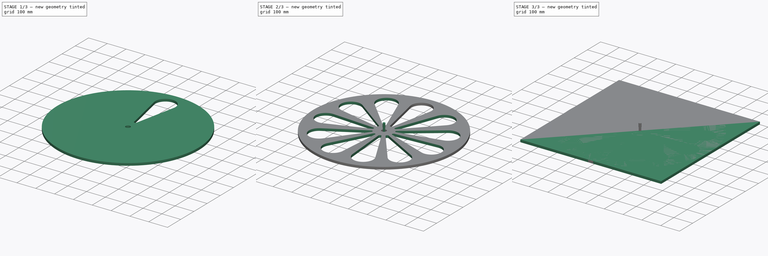
[diagram: build sequence overview — one tinted view per stage of 3, left to right]
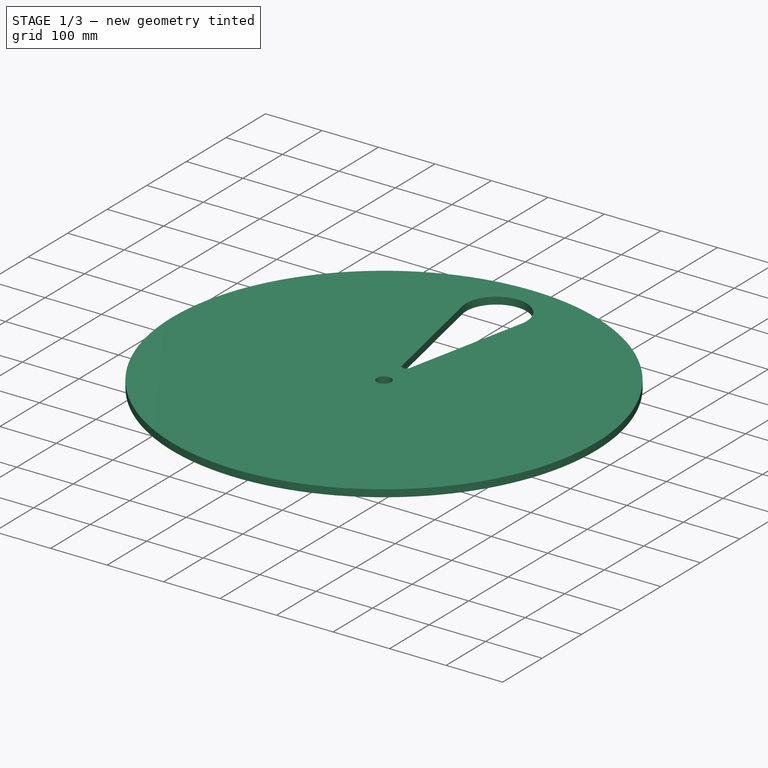
[diagram: stage 1 of 3 — iso view after this stage's code; geometry added in this stage tinted green]
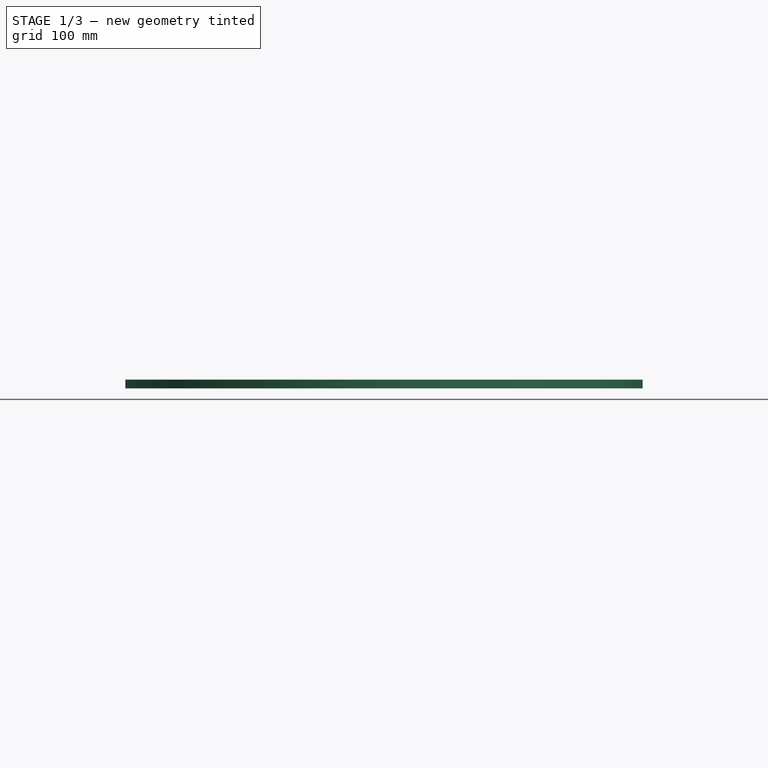
[diagram: stage 1 of 3 — front view after this stage's code; geometry added in this stage tinted green]
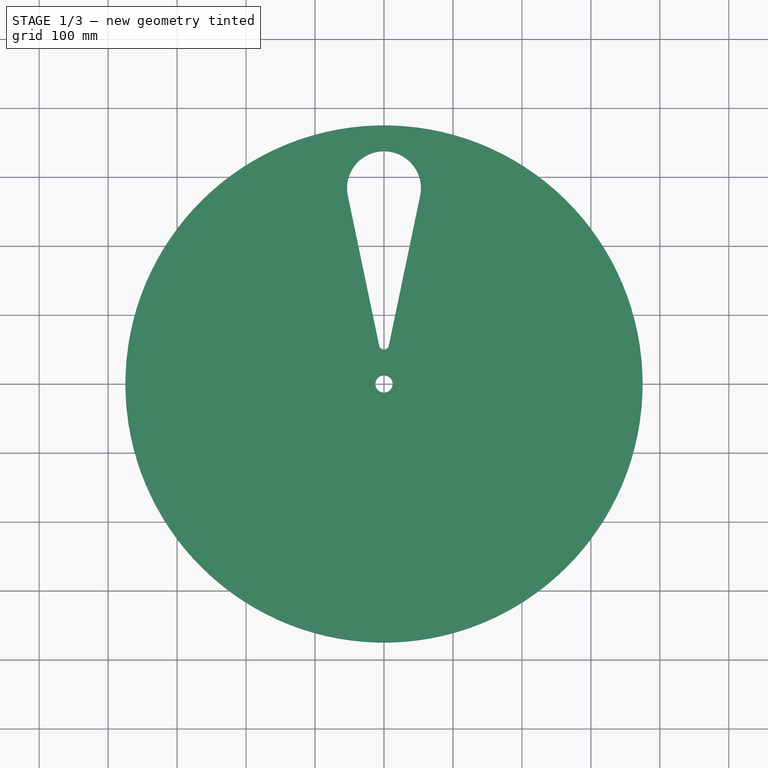
[diagram: stage 1 of 3 — top view after this stage's code; geometry added in this stage tinted green]
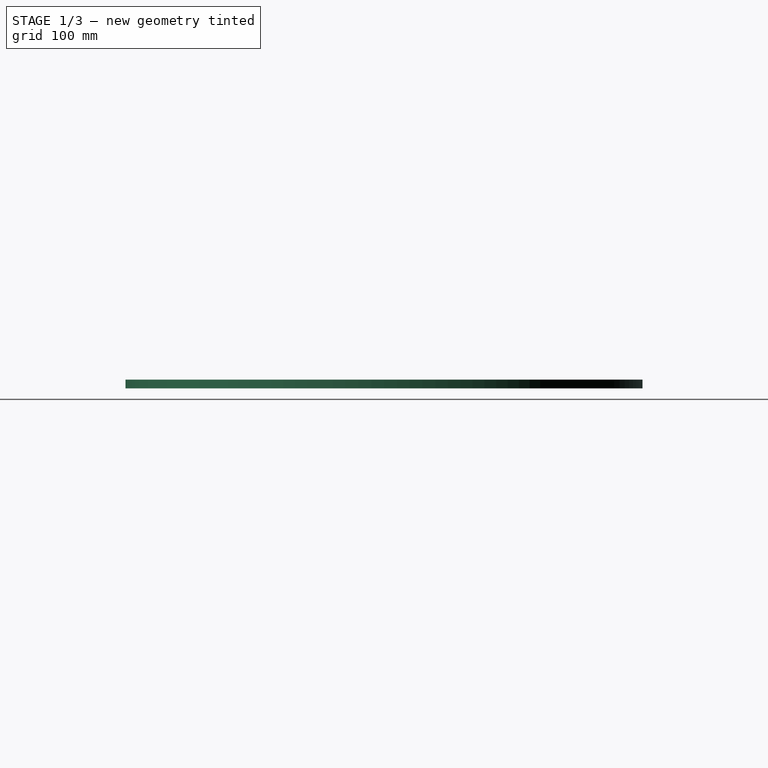
[diagram: stage 1 of 3 — right view after this stage's code; geometry added in this stage tinted green]
FCSTD DOCUMENT  (FreeCAD 0.20R29410 (Git))
Label: SpokedWheel
License: All rights reserved
LicenseURL: http://en.wikipedia.org/wiki/All_rights_reserved
objects: Path::FeaturePython×7, Part::FeaturePython×3, App::DocumentObjectGroup×3, Sketcher::SketchObject×2, Spreadsheet::Sheet×1, PartDesign::Pad×1, PartDesign::Pocket×1, App::FeaturePython×1, PartDesign::PolarPattern×1, PartDesign::Body×1
note: 14 computed .brp shape members not serialized (recipe doc carries the construction recipe); baked Part::Feature solids carry a one-line shape summary decoded from their .brp

FEATURE [Spreadsheet::Sheet] Spreadsheet  label="SS"
  cells = A1=Settings; H1=Calculated; A2=Wheel Diameter; B2(WheelDiameter)=750; H2=Outer Spoke Diameter; I2(SpokeMajor)==pi * WheelDiameter * 0.5 / NumSpokes; A3=Axle Diameter; B3(AxleDiam)=25; H3=Inner Spoke Diameter; I3(SpokeMinor)==HubCircle / NumSpokes / 2; A4=Num Spokes; B4(NumSpokes)=11; H4=Spoke Length; I4(SpokeLen)==WheelDiameter / 2 * 0.9 - HubDia / 2 - SpokeMajor / 2 - SpokeMinor / 2; A5=Hub Diameter; B5(HubDia)=100; H5=InnerCircle; I5==pi * HubDia; A6=Material Thickness; B6(Thickness)=12.7; H6=Hub Circle; I6(HubCircle)==pi * HubDia
FEATURE [Sketcher::SketchObject] Sketch
  FullyConstrained = true
  MapMode = 5
  Support = -> [XY_Plane]
  expr: Constraints[1] = <<SS>>.WheelDiameter
  expr: Constraints[3] = <<SS>>.AxleDiam
  sketch-geometry (2):
    g0: Circle CenterX=0 CenterY=0 CenterZ=0 NormalX=0 NormalY=0 NormalZ=1 AngleXU=0 Radius=375
    g1: Circle CenterX=0 CenterY=0 CenterZ=0 NormalX=0 NormalY=0 NormalZ=1 AngleXU=0 Radius=12.5
  constraints (4):
    c: Coincident(g0,g-1)
    c: Diameter(g0) = 750
    c: Coincident(g1,g0)
    c: Diameter(g1) = 25
FEATURE [PartDesign::Pad] Pad
  Direction = (0,0,1)
  Length = 12.7
  Length2 = 10
  Profile = -> Sketch
  ReferenceAxis = -> Sketch [N_Axis]
  Type = 0
  expr: Length = <<SS>>.Thickness
FEATURE [Sketcher::SketchObject] Sketch001
  FullyConstrained = true
  MapMode = 5
  Placement = pos=(0,0,12.7) rot=(0,0,1;0rad)
  Support = -> [Pad]
  expr: Constraints[11] = <<SS>>.SpokeMinor
  expr: Constraints[4] = <<SS>>.SpokeMajor
  expr: Constraints[5] = (<<SS>>.HubDia + <<SS>>.SpokeMinor) / 2
  expr: Constraints[9] = <<SS>>.SpokeLen
  sketch-geometry (4):
    g0: ArcOfCircle CenterX=0 CenterY=283.95 CenterZ=0 NormalX=0 NormalY=0 NormalZ=1 AngleXU=0 Radius=53.5499 StartAngle=6.07711 EndAngle=9.63085
    g1: ArcOfCircle CenterX=0 CenterY=57.14 CenterZ=0 NormalX=0 NormalY=0 NormalZ=1 AngleXU=0 Radius=7.13998 StartAngle=3.34767 EndAngle=6.07711
    g2: LineSegment StartX=-52.4168 StartY=272.993 StartZ=0 EndX=-6.98891 EndY=55.679 EndZ=0
    g3: LineSegment StartX=52.4168 StartY=272.993 StartZ=0 EndX=6.98891 EndY=55.679 EndZ=0
  constraints (12):
    c: Tangent(g1,g2) = -1.5708
    c: Tangent(g1,g3) = 1.5708
    c: DistanceX(g1,g-1) = 0
    c: DistanceX(g0,g-1) = 0
    c: Diameter(g0) = 107.1
    c: DistanceY(g-1,g1) = 57.14
    c: Tangent(g0,g2) = -1.5708
    c: Tangent(g0,g3) = 1.5708
    c: Equal(g2,g3)
    c: DistanceY(g1,g0) = 226.81
    c: Coincident(g3,g0)
    c: Diameter(g1) = 14.28
FEATURE [PartDesign::Pocket] Pocket
  BaseFeature = -> Pad
  Direction = (0,0,-1)
  Length = 12.7
  Length2 = 5
  Profile = -> Sketch001
  ReferenceAxis = -> Sketch001 [N_Axis]
  Type = 0
  expr: Length = <<SS>>.Thickness
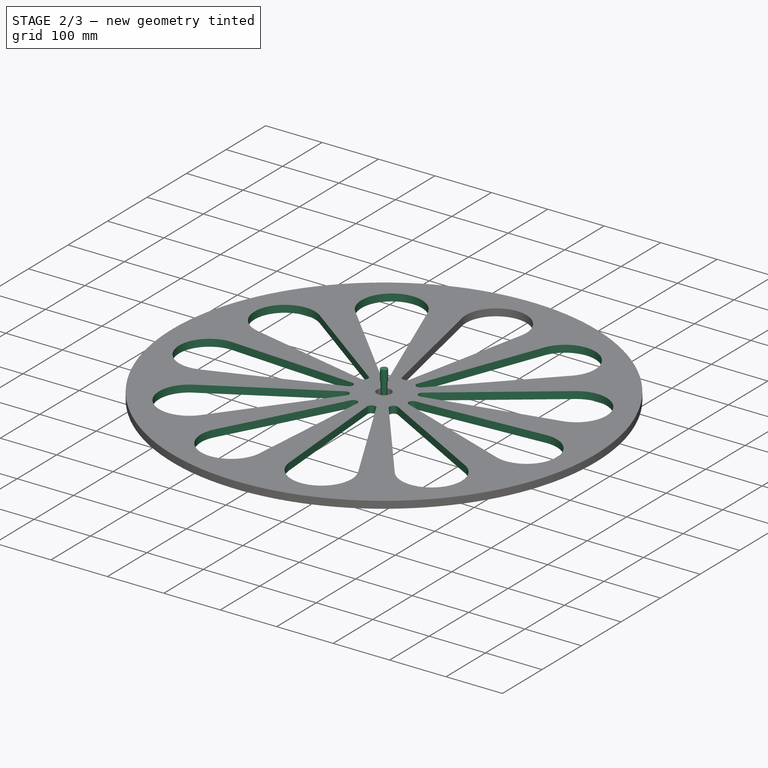
[diagram: stage 2 of 3 — iso view after this stage's code; geometry added in this stage tinted green]
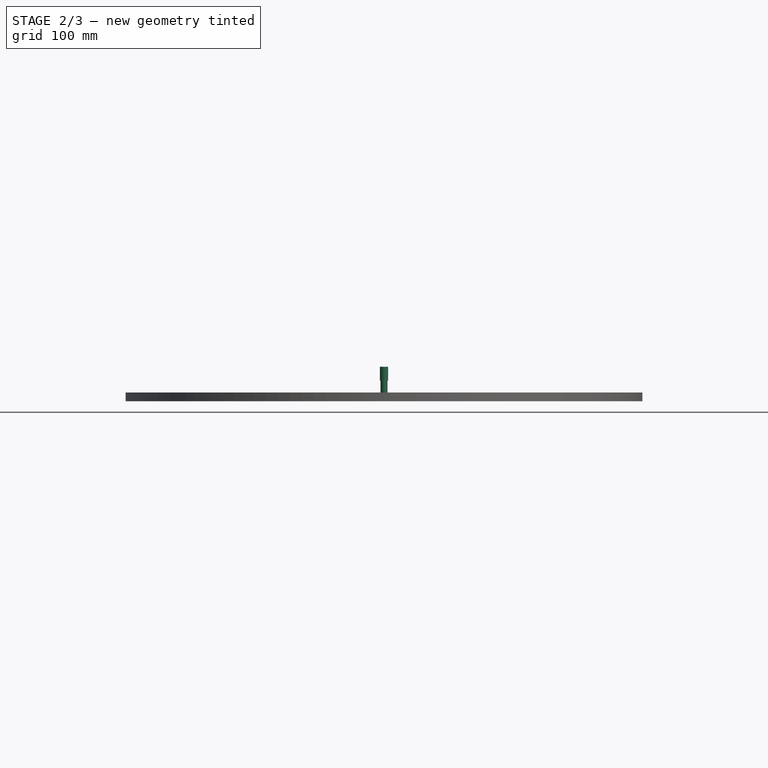
[diagram: stage 2 of 3 — front view after this stage's code; geometry added in this stage tinted green]
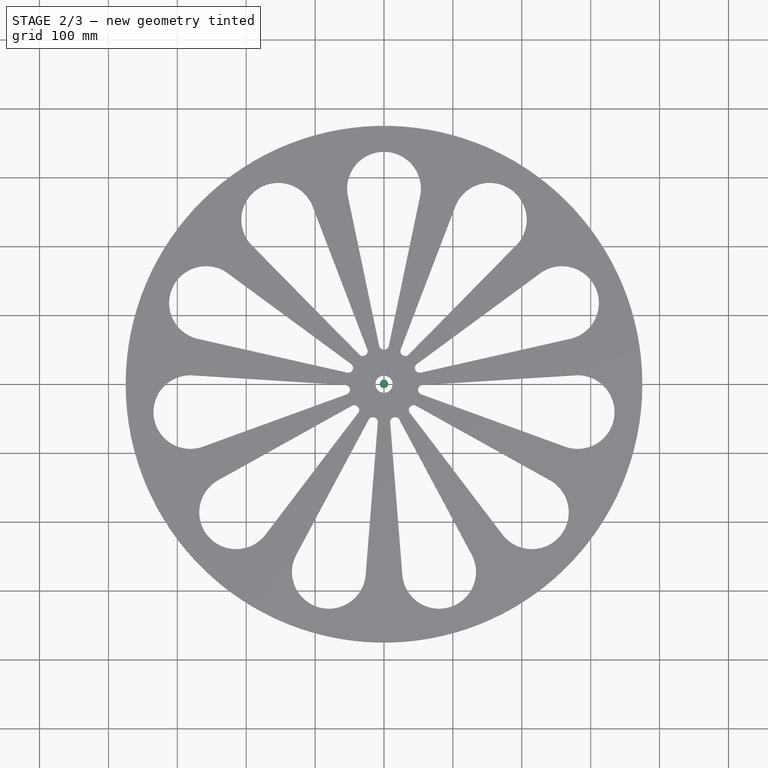
[diagram: stage 2 of 3 — top view after this stage's code; geometry added in this stage tinted green]
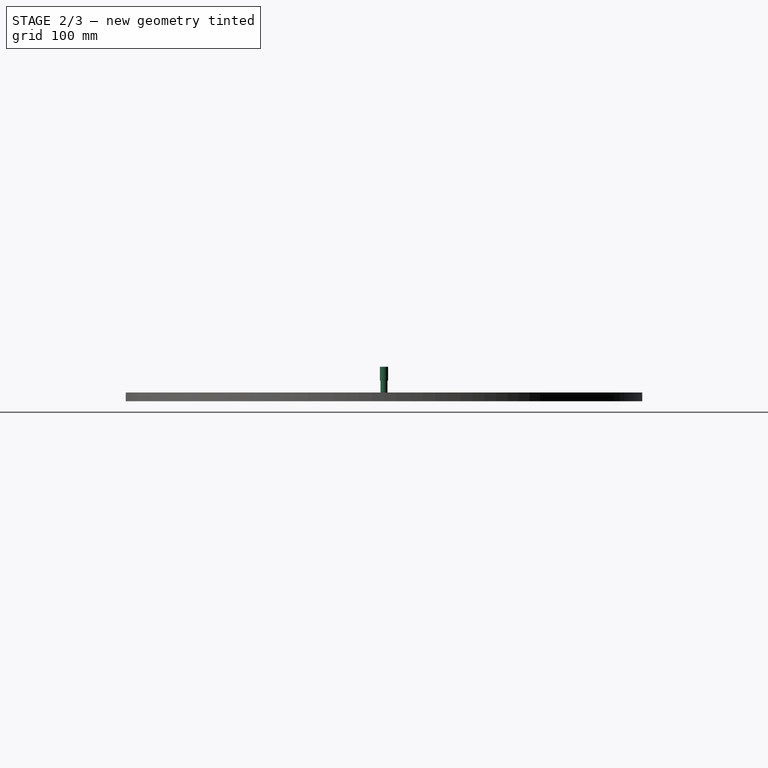
[diagram: stage 2 of 3 — right view after this stage's code; geometry added in this stage tinted green]
FEATURE [Part::FeaturePython] ToolBit001  label="10mm_Endmill"  # Path/CAM toolbit (typed FeaturePython)
  BitPropertyNames = Chipload | CuttingEdgeHeight | Diameter | Flutes | Length | Material | ShankDiameter | SpindleDirection
  BitShape = <path>
  Chipload = 0
  CuttingEdgeHeight = 30
  Diameter = 10
  File = <userpath>/MensShed/CNCRouter/FreeCAD/Bit/10mm_Endmill.fctb
  Flutes = 0
  Length = 50
  Material = 0
  ShankDiameter = 12
  ShapeName = endmill
  SpindleDirection = 0
FEATURE [Path::FeaturePython] _0mm_Endmill  label="10mm_Endmill001"  # Path/CAM operation (typed FeaturePython)
  HorizFeed = 10
  HorizRapid = 0
  SpindleDir = 0
  SpindleSpeed = 12000
  Tool = -> ToolBit001
  ToolNumber = 2
  VertFeed = 5
  VertRapid = 0
  expr: HorizRapid = SetupSheet.HorizRapid
  expr: VertRapid = SetupSheet.VertRapid
FEATURE [App::DocumentObjectGroup] Tools
  Group = -> [_0mm_Endmill]
FEATURE [Path::FeaturePython] Profile  label="Circumference"  # Path/CAM operation (typed FeaturePython)
  Active = true
  AreaParams:
    Tolerance = 1e-07
    FitArcs = True
    Simplify = False
    CleanDistance = 0.0
    Accuracy = 0.01
    Unit = 1.0
    MinArcPoints = 4
    MaxArcPoints = 100
    ClipperScale = 10000000.0
    Fill = 0
    Coplanar = 0
    Reorient = True
    Outline = False
    Explode = False
    OpenMode = 0
    Deflection = 0.01
    SubjectFill = 0
    ClipFill = 0
    Offset = 5.0
    ExtraPass = 0
    Stepover = 0.0
    LastStepover = 0.0
    JoinType = 0
    EndType = 0
    MiterLimit = 2.0
    RoundPrecision = 0.0
    PocketMode = 0
    ToolRadius = 1.0
    PocketExtraOffset = 0.0
    PocketStepover = 0.0
    PocketLastStepover = 0.0
    FromCenter = False
    Angle = 45.0
    AngleShift = 0.0
    Shift = 0.0
    Thicken = False
    SectionCount = -1
    Stepdown = 1.0
    SectionOffset = 0.0
    SectionTolerance = 1e-06
    SectionMode = 2
    Project = False
  ClearanceHeight = 17.7
  CoolantMode = 0
  CycleTime = 00:08:46
  Direction = 0
  FinalDepth = 0
  HandleMultipleFeatures = 0
  JoinType = 0
  MiterLimit = 0.1
  OffsetExtra = 0
  OpFinalDepth = 0
  OpStartDepth = 12.7
  OpStockZMax = 12.7
  OpStockZMin = 0
  OpToolDiameter = 10
  PathParams = {'orientation': 1, 'feedrate': 10.0, 'feedrate_v': 5.0, 'verbose': True, 'resume_height': 15.7, 'retraction': 17.7, 'return_end': True, 'preamble': False}
  SafeHeight = 15.7
  Side = 0
  SplitArcs = false
  StartDepth = 12.7
  StartPoint = (0,0,0)
  StepDown = 10
  ToolController = -> _0mm_Endmill
  UseComp = true
  UseStartPoint = false
  processCircles = false
  processHoles = false
  processPerimeter = true
  expr: ClearanceHeight = OpStockZMax + SetupSheet.ClearanceHeightOffset
  expr: FinalDepth = OpFinalDepth
  expr: SafeHeight = OpStockZMax + SetupSheet.SafeHeightOffset
  expr: StartDepth = OpStartDepth
  expr: StepDown = OpToolDiameter
FEATURE [Path::FeaturePython] Profile002  label="Axle"  # Path/CAM operation (typed FeaturePython)
  Active = true
  AreaParams:
    Tolerance = 1e-07
    FitArcs = True
    Simplify = False
    CleanDistance = 0.0
    Accuracy = 0.01
    Unit = 1.0
    MinArcPoints = 4
    MaxArcPoints = 100
    ClipperScale = 10000000.0
    Fill = 0
    Coplanar = 0
    Reorient = True
    Outline = False
    Explode = False
    OpenMode = 0
    Deflection = 0.01
    SubjectFill = 0
    ClipFill = 0
    Offset = -5.0
    ExtraPass = 0
    Stepover = 0.0
    LastStepover = 0.0
    JoinType = 0
    EndType = 0
    MiterLimit = 2.0
    RoundPrecision = 0.0
    PocketMode = 0
    ToolRadius = 1.0
    PocketExtraOffset = 0.0
    PocketStepover = 0.0
    PocketLastStepover = 0.0
    FromCenter = False
    Angle = 45.0
    AngleShift = 0.0
    Shift = 0.0
    Thicken = False
    SectionCount = -1
    Stepdown = 1.0
    SectionOffset = 0.0
    SectionTolerance = 1e-06
    SectionMode = 2
    Project = False
  ClearanceHeight = 17.7
  CoolantMode = 0
  CycleTime = 00:08:32
  Direction = 0
  FinalDepth = 0
  HandleMultipleFeatures = 0
  JoinType = 0
  MiterLimit = 0.1
  OffsetExtra = 0
  OpFinalDepth = 0
  OpStartDepth = 12.7
  OpStockZMax = 12.7
  OpStockZMin = 0
  OpToolDiameter = 10
  PathParams = {'orientation': 1, 'feedrate': 10.0, 'feedrate_v': 5.0, 'verbose': True, 'resume_height': 15.7, 'retraction': 17.7, 'return_end': True, 'preamble': False}
  SafeHeight = 15.7
  Side = 1
  SplitArcs = false
  StartDepth = 12.7
  StartPoint = (0,0,0)
  StepDown = 10
  ToolController = -> _0mm_Endmill
  UseComp = true
  UseStartPoint = false
  processCircles = false
  processHoles = false
  processPerimeter = true
  expr: ClearanceHeight = OpStockZMax + SetupSheet.ClearanceHeightOffset
  expr: FinalDepth = OpFinalDepth
  expr: SafeHeight = OpStockZMax + SetupSheet.SafeHeightOffset
  expr: StartDepth = OpStartDepth
  expr: StepDown = OpToolDiameter
FEATURE [PartDesign::PolarPattern] PolarPattern
  Angle = 360
  Axis = -> Sketch001 [N_Axis]
  BaseFeature = -> Pocket
  Occurrences = 11
  Originals = -> [Pocket]
  expr: Occurrences = <<SS>>.NumSpokes
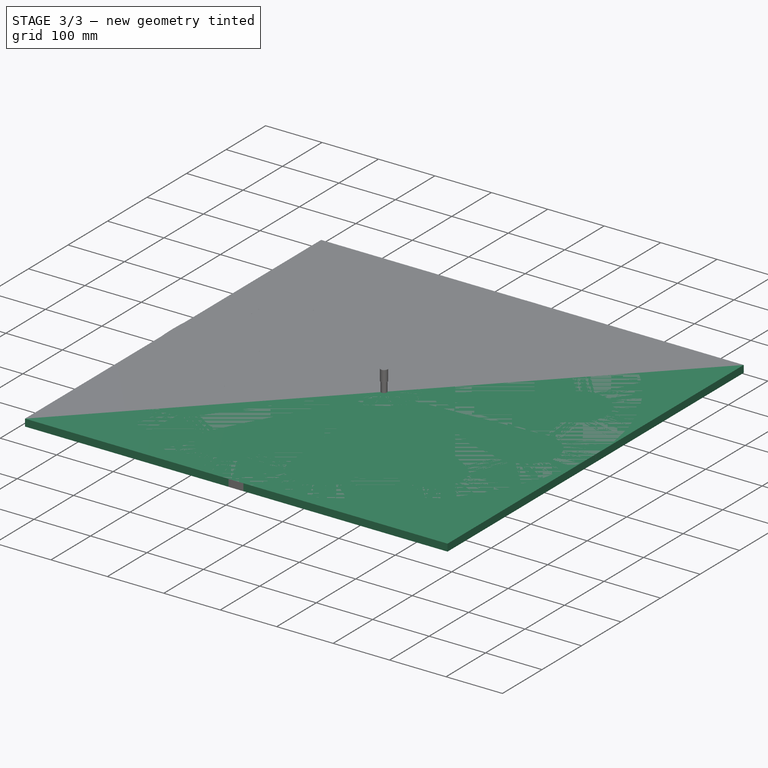
[diagram: stage 3 of 3 — iso view after this stage's code; geometry added in this stage tinted green]
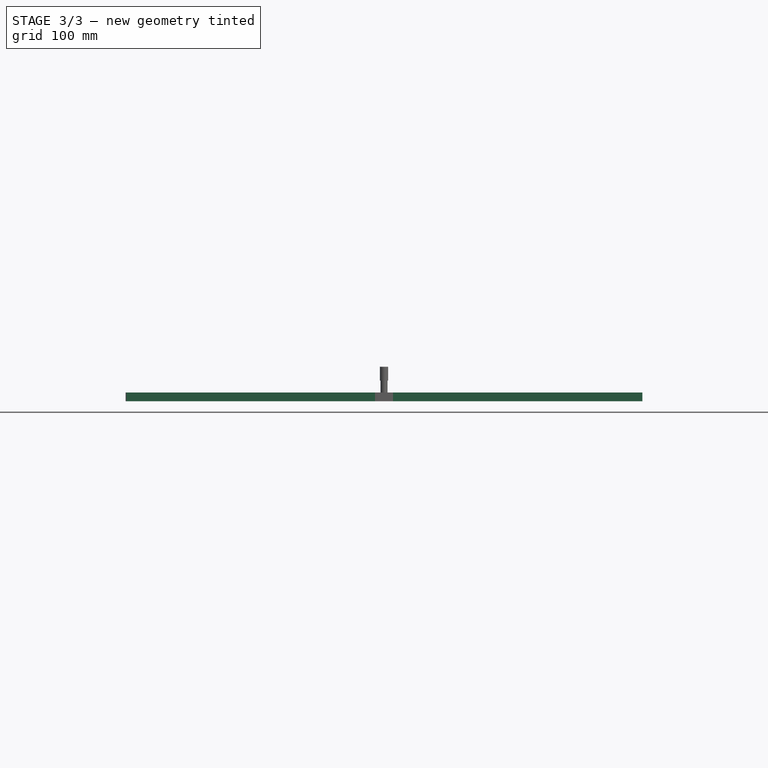
[diagram: stage 3 of 3 — front view after this stage's code; geometry added in this stage tinted green]
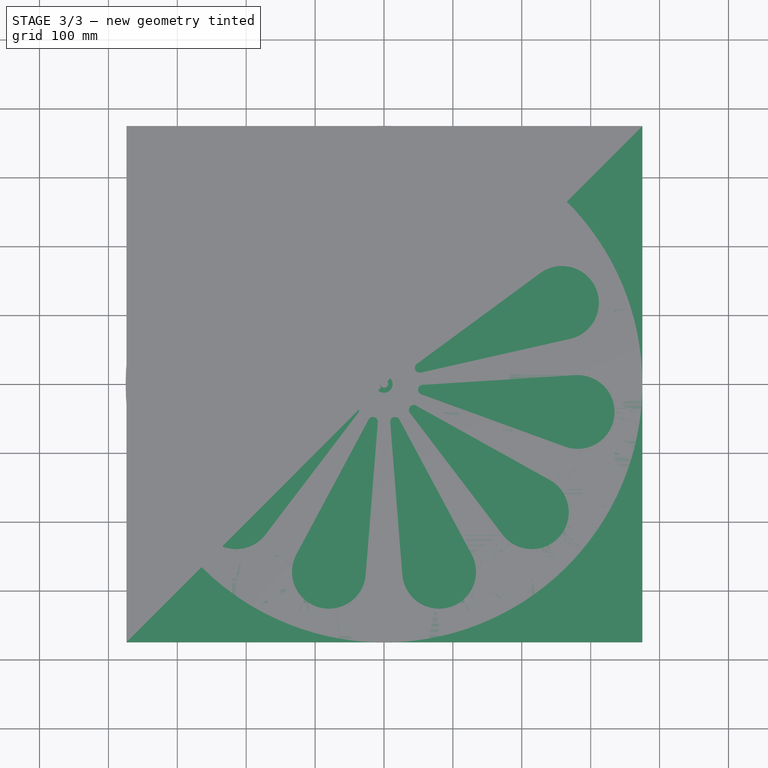
[diagram: stage 3 of 3 — top view after this stage's code; geometry added in this stage tinted green]
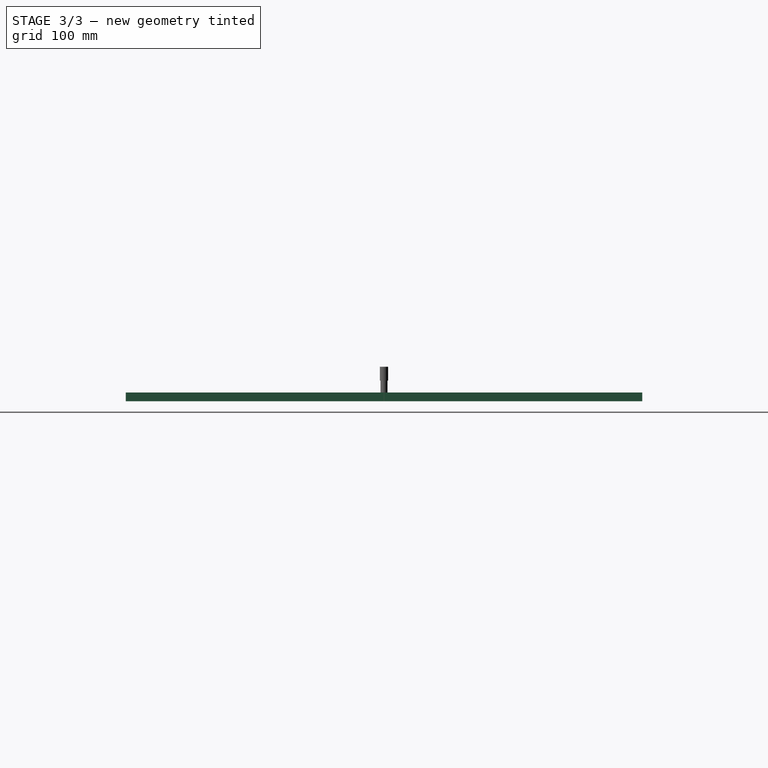
[diagram: stage 3 of 3 — right view after this stage's code; geometry added in this stage tinted green]
FEATURE [App::FeaturePython] SetupSheet  # Path/CAM operation (typed FeaturePython)
  ClearanceHeightExpression = OpStockZMax+SetupSheet.ClearanceHeightOffset
  ClearanceHeightOffset = 5
  CoolantMode = 0
  CoolantModes = None | Flood | Mist
  FinalDepthExpression = OpFinalDepth
  HorizRapid = 0
  SafeHeightExpression = OpStockZMax+SetupSheet.SafeHeightOffset
  SafeHeightOffset = 3
  StartDepthExpression = OpStartDepth
  StepDownExpression = OpToolDiameter
  VertRapid = 0
FEATURE [Part::FeaturePython] Stock  # WARN: FeaturePython — macro-defined, semantics opaque (R4)
  Height = 12.7
  Length = 748.78
  Placement = pos=(-373.784,-374.696,0) rot=(0,0,1;0rad)
  StockType = CreateBox
  Width = 749.39
FEATURE [PartDesign::Body] Body
  Group = -> [Sketch,Pad,Sketch001,Pocket,PolarPattern]
  Origin = -> Origin
  Tip = -> PolarPattern
FEATURE [Part::FeaturePython] Clone  label="Model-Body"  # Draft clone (typed FeaturePython)
  AttacherType = Attacher::AttachEngine3D
  Fuse = false
  Objects = -> [Body]
  PathResource = Model
  Scale = (1,1,1)
FEATURE [App::DocumentObjectGroup] Model
  Group = -> [Clone]
FEATURE [Path::FeaturePython] Profile001  label="Spoke"  # Path/CAM operation (typed FeaturePython)
  Active = true
  AreaParams:
    Tolerance = 1e-07
    FitArcs = True
    Simplify = False
    CleanDistance = 0.0
    Accuracy = 0.01
    Unit = 1.0
    MinArcPoints = 4
    MaxArcPoints = 100
    ClipperScale = 10000000.0
    Fill = 0
    Coplanar = 0
    Reorient = True
    Outline = False
    Explode = False
    OpenMode = 0
    Deflection = 0.01
    SubjectFill = 0
    ClipFill = 0
    Offset = -5.0
    ExtraPass = 0
    Stepover = 0.0
    LastStepover = 0.0
    JoinType = 0
    EndType = 0
    MiterLimit = 2.0
    RoundPrecision = 0.0
    PocketMode = 0
    ToolRadius = 1.0
    PocketExtraOffset = 0.0
    PocketStepover = 0.0
    PocketLastStepover = 0.0
    FromCenter = False
    Angle = 45.0
    AngleShift = 0.0
    Shift = 0.0
    Thicken = False
    SectionCount = -1
    Stepdown = 1.0
    SectionOffset = 0.0
    SectionTolerance = 1e-06
    SectionMode = 2
    Project = False
  Base = -> [Clone]
  ClearanceHeight = 17.7
  CoolantMode = 0
  CycleTime = 00:01:33
  Direction = 0
  FinalDepth = 12.7
  HandleMultipleFeatures = 0
  JoinType = 0
  MiterLimit = 0.1
  OffsetExtra = 0
  OpFinalDepth = 12.7
  OpStartDepth = 22.7
  OpStockZMax = 12.7
  OpStockZMin = 0
  OpToolDiameter = 10
  PathParams = {'orientation': 1, 'feedrate': 10.0, 'feedrate_v': 5.0, 'verbose': True, 'resume_height': 15.7, 'retraction': 17.7, 'return_end': True, 'preamble': False}
  SafeHeight = 15.7
  Side = 1
  SplitArcs = false
  StartDepth = 22.7
  StartPoint = (0,0,0)
  StepDown = 10
  ToolController = -> _0mm_Endmill
  UseComp = true
  UseStartPoint = false
  processCircles = false
  processHoles = false
  processPerimeter = true
  expr: ClearanceHeight = OpStockZMax + SetupSheet.ClearanceHeightOffset
  expr: FinalDepth = OpFinalDepth
  expr: SafeHeight = OpStockZMax + SetupSheet.SafeHeightOffset
  expr: StartDepth = OpStartDepth
  expr: StepDown = OpToolDiameter
FEATURE [Path::FeaturePython] Array  # Path/CAM operation (typed FeaturePython)
  Active = true
  Angle = 360
  Base = -> [Profile001]
  Centre = (0,0,0)
  Copies = 11
  CopiesX = 0
  CopiesY = 0
  JitterMagnitude = (0,0,0)
  JitterPercent = 0
  JitterSeed = 0
  Offset = (0,0,0)
  SwapDirection = false
  ToolController = -> _0mm_Endmill
  Type = 2
  expr: Copies = <<SS>>.NumSpokes
FEATURE [Path::FeaturePython] Comment  # Path/CAM operation (typed FeaturePython)
  Comment = Testing
FEATURE [App::DocumentObjectGroup] Operations
  Group = -> [Comment,Profile002,Profile001,Profile,Array]
FEATURE [Path::FeaturePython] Job  # Path/CAM operation (typed FeaturePython)
  CycleTime = 00:18:51
  Fixtures = G54
  GeometryTolerance = 0.01
  JobType = 0
  Model = -> Model
  Operations = -> Operations
  OrderOutputBy = 0
  PostProcessor = 2
  PostProcessorOutputFile = %D/%d.ngc
  SetupSheet = -> SetupSheet
  SplitOutput = false
  Stock = -> Stock
  Tools = -> Tools
note: 1 file-system path scrubbed to <path> (originals preserved in the JSON sidecar)
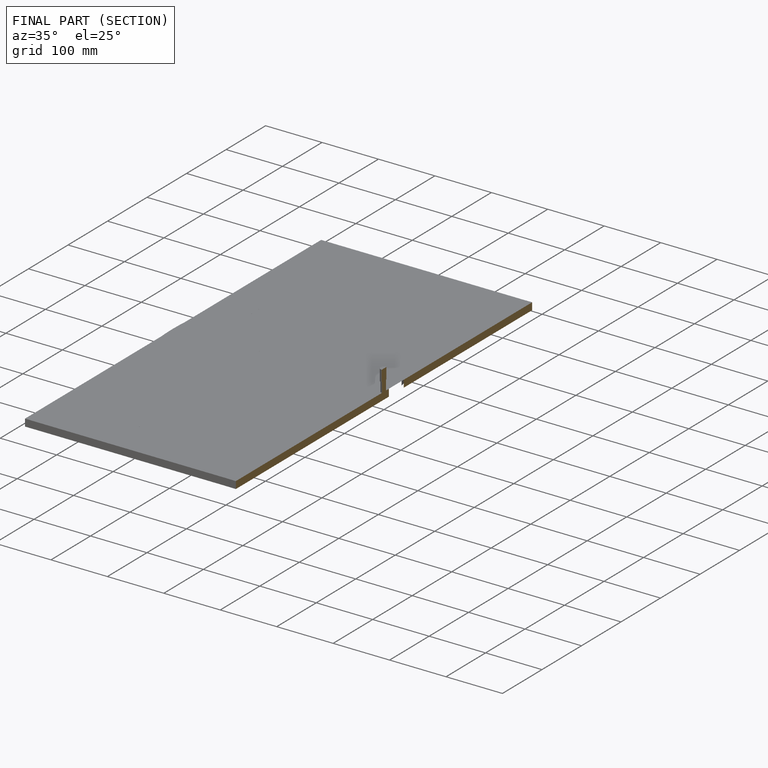
[diagram: finished part — half-section view (interior)]
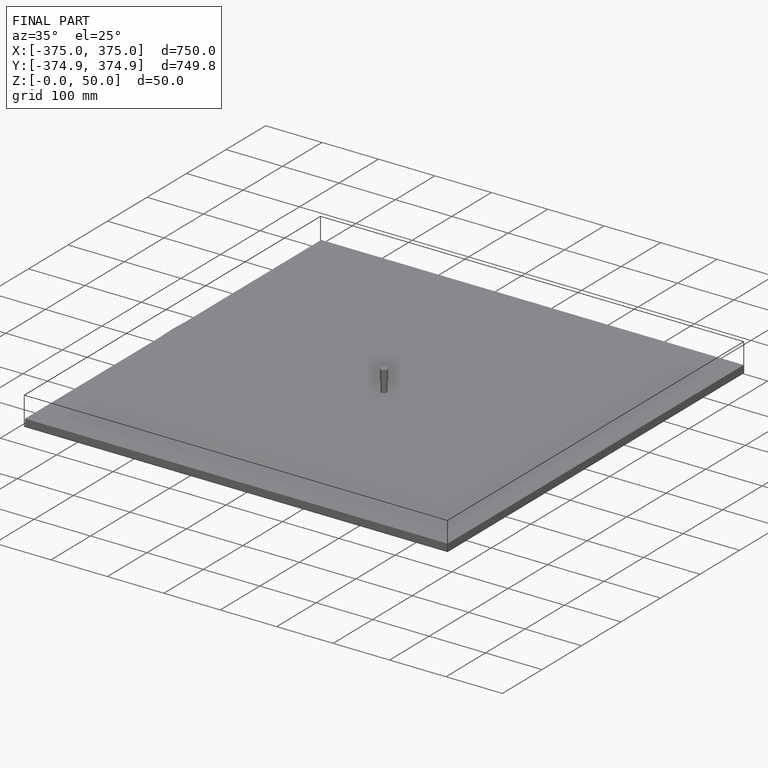
[diagram: finished part — iso view with bounding-box wireframe]
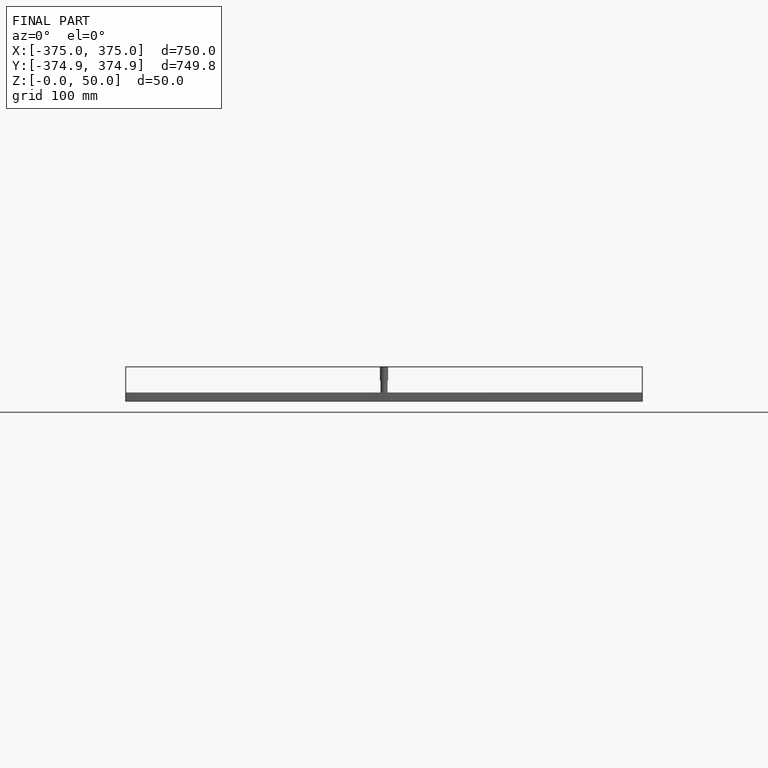
[diagram: finished part — front view with bounding-box wireframe]
